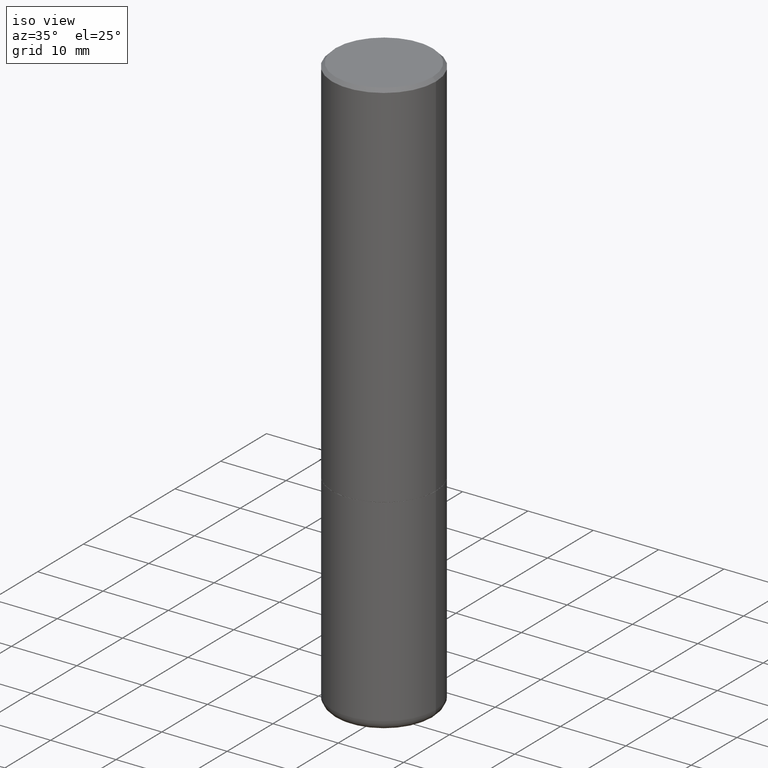
[diagram: clean part render]
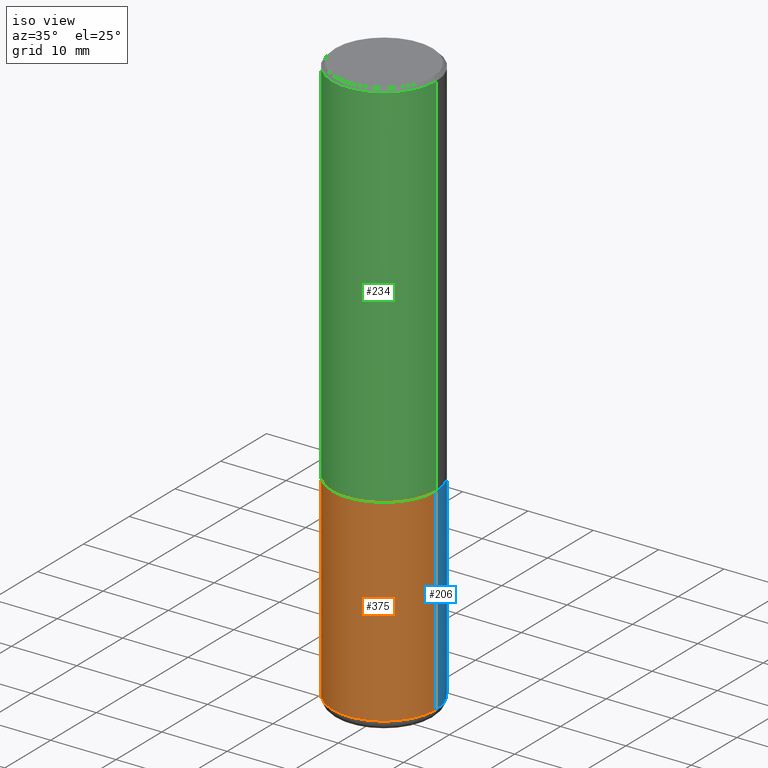
[diagram: same view with three faces highlighted in distinct colors, each labeled with its STEP entity id]
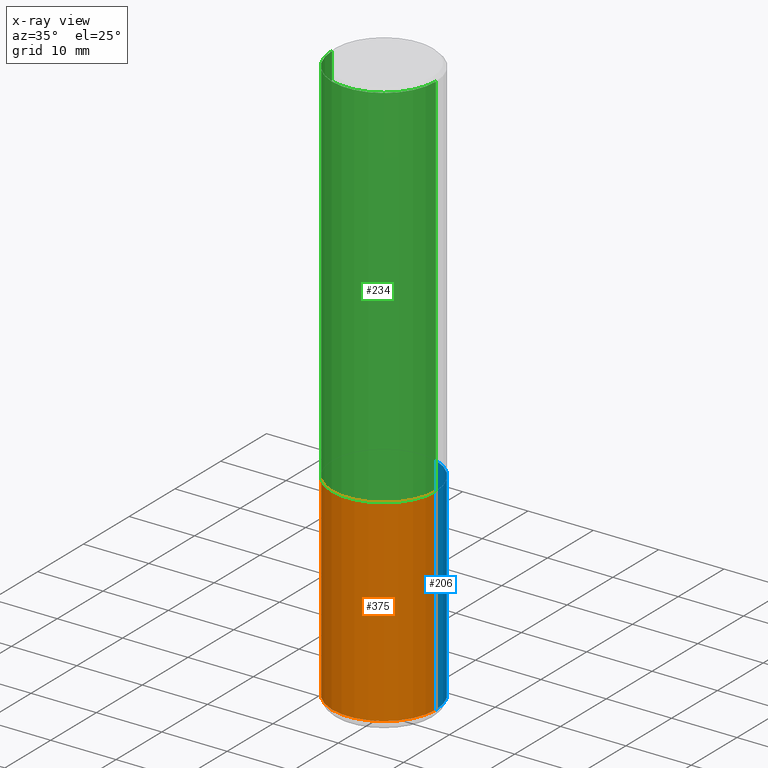
[diagram: x-ray of the same camera — body ghosted, the three highlighted faces saturated]
A machine part, iso view with three faces highlighted in distinct colors.
The next image is the same camera in x-ray (body ghosted, the three faces saturated) — at least one of them is partly hidden behind the body in this view.
Their STEP definitions:

[orange] entity #375 — the highlighted cylindrical surface (partial cylindrical patch) has radius 7.9375 mm, axis along (-0, 0, 1).
#11 = ORIENTED_EDGE ( 'NONE', *, *, #179, .F. ) ;
#16 = AXIS2_PLACEMENT_3D ( 'NONE', #83, #50, #77 ) ;
#20 = VERTEX_POINT ( 'NONE', #154 ) ;
#28 = VERTEX_POINT ( 'NONE', #207 ) ;
#39 = CYLINDRICAL_SURFACE ( 'NONE', #217, 0.3125000000000000000 ) ;
#50 = DIRECTION ( 'NONE',  ( -2.445468806185136597E-29, 3.491481338843145583E-15, 1.000000000000000000 ) ) ;
#59 = EDGE_CURVE ( 'NONE', #28, #326, #73, .T. ) ;
#68 = CIRCLE ( 'NONE', #94, 0.3125000000000000000 ) ;
#70 = DIRECTION ( 'NONE',  ( -2.445468806185136597E-29, 3.491481338843145583E-15, 1.000000000000000000 ) ) ;
#73 = CIRCLE ( 'NONE', #16, 0.3125000000000000000 ) ;
#76 = CARTESIAN_POINT ( 'NONE',  ( 0.3125000000000000000, -1.003800884917403522E-14, -2.249999999999999556 ) ) ;
#77 = DIRECTION ( 'NONE',  ( 1.000000000000000000, -6.982962677686269077E-15, 0.000000000000000000 ) ) ;
#81 = CARTESIAN_POINT ( 'NONE',  ( -0.3125000000000000000, 2.220446049250313081E-15, -1.537167215704658232E-29 ) ) ;
#83 = CARTESIAN_POINT ( 'NONE',  ( 5.502304813916556222E-29, -7.855833012397076871E-15, -2.249999999999999556 ) ) ;
#85 = ORIENTED_EDGE ( 'NONE', *, *, #359, .T. ) ;
#91 = ORIENTED_EDGE ( 'NONE', *, *, #401, .T. ) ;
#94 = AXIS2_PLACEMENT_3D ( 'NONE', #201, #308, #348 ) ;
#101 = ORIENTED_EDGE ( 'NONE', *, *, #59, .F. ) ;
#112 = CARTESIAN_POINT ( 'NONE',  ( 0.3125000000000000000, -2.182175836776958347E-15, 1.523805242436230075E-29 ) ) ;
#114 = VECTOR ( 'NONE', #195, 39.37007874015748143 ) ;
#117 = LINE ( 'NONE', #81, #367 ) ;
#122 = VERTEX_POINT ( 'NONE', #227 ) ;
#154 = CARTESIAN_POINT ( 'NONE',  ( 0.3125000000000000000, -1.419287164239737937E-14, -3.439999999999999947 ) ) ;
#179 = EDGE_CURVE ( 'NONE', #122, #28, #117, .T. ) ;
#195 = DIRECTION ( 'NONE',  ( -2.445468806185136877E-29, 3.491481338843145188E-15, 1.000000000000000000 ) ) ;
#196 = DIRECTION ( 'NONE',  ( 1.000000000000000000, -6.982962677686266711E-15, 4.876176775795936353E-29 ) ) ;
#201 = CARTESIAN_POINT ( 'NONE',  ( 8.412412693276869938E-29, -1.201069580562042103E-14, -3.439999999999999947 ) ) ;
#207 = CARTESIAN_POINT ( 'NONE',  ( -0.3125000000000000000, -7.712818359758435078E-15, -2.249999999999999556 ) ) ;
#217 = AXIS2_PLACEMENT_3D ( 'NONE', #303, #70, #196 ) ;
#218 = DIRECTION ( 'NONE',  ( -2.445468806185136877E-29, 3.491481338843145188E-15, 1.000000000000000000 ) ) ;
#227 = CARTESIAN_POINT ( 'NONE',  ( -0.3125000000000000000, -9.790249756370107944E-15, -3.439999999999999947 ) ) ;
#303 = CARTESIAN_POINT ( 'NONE',  ( 0.000000000000000000, 0.000000000000000000, 0.000000000000000000 ) ) ;
#305 = LINE ( 'NONE', #112, #114 ) ;
#308 = DIRECTION ( 'NONE',  ( -2.445468806185136597E-29, 3.491481338843145583E-15, 1.000000000000000000 ) ) ;
#326 = VERTEX_POINT ( 'NONE', #76 ) ;
#339 = FACE_OUTER_BOUND ( 'NONE', #382, .T. ) ;
#348 = DIRECTION ( 'NONE',  ( 1.000000000000000000, -6.982962677686269077E-15, 0.000000000000000000 ) ) ;
#359 = EDGE_CURVE ( 'NONE', #20, #326, #305, .T. ) ;
#367 = VECTOR ( 'NONE', #218, 39.37007874015748143 ) ;
#375 = ADVANCED_FACE ( 'NONE', ( #339 ), #39, .T. ) ;
#382 = EDGE_LOOP ( 'NONE', ( #11, #91, #85, #101 ) ) ;
#401 = EDGE_CURVE ( 'NONE', #122, #20, #68, .T. ) ;

[blue] entity #206 — the highlighted cylindrical surface (partial cylindrical patch) has radius 7.9375 mm, axis along (-0, 0, 1).
#20 = VERTEX_POINT ( 'NONE', #154 ) ;
#28 = VERTEX_POINT ( 'NONE', #207 ) ;
#29 = DIRECTION ( 'NONE',  ( 1.000000000000000000, -6.982962677686269077E-15, 0.000000000000000000 ) ) ;
#35 = CIRCLE ( 'NONE', #224, 0.3125000000000000000 ) ;
#43 = DIRECTION ( 'NONE',  ( -2.445468806185136597E-29, 3.491481338843145583E-15, 1.000000000000000000 ) ) ;
#76 = CARTESIAN_POINT ( 'NONE',  ( 0.3125000000000000000, -1.003800884917403522E-14, -2.249999999999999556 ) ) ;
#81 = CARTESIAN_POINT ( 'NONE',  ( -0.3125000000000000000, 2.220446049250313081E-15, -1.537167215704658232E-29 ) ) ;
#86 = CARTESIAN_POINT ( 'NONE',  ( 0.000000000000000000, 0.000000000000000000, 0.000000000000000000 ) ) ;
#97 = DIRECTION ( 'NONE',  ( -2.445468806185136597E-29, 3.491481338843145583E-15, 1.000000000000000000 ) ) ;
#111 = ORIENTED_EDGE ( 'NONE', *, *, #359, .F. ) ;
#112 = CARTESIAN_POINT ( 'NONE',  ( 0.3125000000000000000, -2.182175836776958347E-15, 1.523805242436230075E-29 ) ) ;
#114 = VECTOR ( 'NONE', #195, 39.37007874015748143 ) ;
#117 = LINE ( 'NONE', #81, #367 ) ;
#122 = VERTEX_POINT ( 'NONE', #227 ) ;
#124 = ORIENTED_EDGE ( 'NONE', *, *, #179, .T. ) ;
#153 = AXIS2_PLACEMENT_3D ( 'NONE', #235, #43, #307 ) ;
#154 = CARTESIAN_POINT ( 'NONE',  ( 0.3125000000000000000, -1.419287164239737937E-14, -3.439999999999999947 ) ) ;
#179 = EDGE_CURVE ( 'NONE', #122, #28, #117, .T. ) ;
#195 = DIRECTION ( 'NONE',  ( -2.445468806185136877E-29, 3.491481338843145188E-15, 1.000000000000000000 ) ) ;
#206 = ADVANCED_FACE ( 'NONE', ( #251 ), #244, .T. ) ;
#207 = CARTESIAN_POINT ( 'NONE',  ( -0.3125000000000000000, -7.712818359758435078E-15, -2.249999999999999556 ) ) ;
#211 = DIRECTION ( 'NONE',  ( -2.445468806185136597E-29, 3.491481338843145583E-15, 1.000000000000000000 ) ) ;
#215 = EDGE_CURVE ( 'NONE', #326, #28, #35, .T. ) ;
#218 = DIRECTION ( 'NONE',  ( -2.445468806185136877E-29, 3.491481338843145188E-15, 1.000000000000000000 ) ) ;
#224 = AXIS2_PLACEMENT_3D ( 'NONE', #327, #97, #29 ) ;
#227 = CARTESIAN_POINT ( 'NONE',  ( -0.3125000000000000000, -9.790249756370107944E-15, -3.439999999999999947 ) ) ;
#235 = CARTESIAN_POINT ( 'NONE',  ( 8.412412693276869938E-29, -1.201069580562042103E-14, -3.439999999999999947 ) ) ;
#237 = CIRCLE ( 'NONE', #153, 0.3125000000000000000 ) ;
#244 = CYLINDRICAL_SURFACE ( 'NONE', #395, 0.3125000000000000000 ) ;
#251 = FACE_OUTER_BOUND ( 'NONE', #392, .T. ) ;
#305 = LINE ( 'NONE', #112, #114 ) ;
#307 = DIRECTION ( 'NONE',  ( 1.000000000000000000, -6.982962677686269077E-15, 0.000000000000000000 ) ) ;
#324 = DIRECTION ( 'NONE',  ( 1.000000000000000000, -6.982962677686266711E-15, 4.876176775795936353E-29 ) ) ;
#326 = VERTEX_POINT ( 'NONE', #76 ) ;
#327 = CARTESIAN_POINT ( 'NONE',  ( 5.502304813916556222E-29, -7.855833012397076871E-15, -2.249999999999999556 ) ) ;
#351 = ORIENTED_EDGE ( 'NONE', *, *, #215, .F. ) ;
#359 = EDGE_CURVE ( 'NONE', #20, #326, #305, .T. ) ;
#367 = VECTOR ( 'NONE', #218, 39.37007874015748143 ) ;
#388 = ORIENTED_EDGE ( 'NONE', *, *, #397, .T. ) ;
#392 = EDGE_LOOP ( 'NONE', ( #388, #124, #351, #111 ) ) ;
#395 = AXIS2_PLACEMENT_3D ( 'NONE', #86, #211, #324 ) ;
#397 = EDGE_CURVE ( 'NONE', #20, #122, #237, .T. ) ;

[green] entity #234 — the highlighted cylindrical surface (partial cylindrical patch) has radius 7.9375 mm, axis along (-0, 0, 1).
#3 = CARTESIAN_POINT ( 'NONE',  ( 0.000000000000000000, 0.000000000000000000, 0.000000000000000000 ) ) ;
#18 = CARTESIAN_POINT ( 'NONE',  ( 4.890937612370289799E-31, -6.982962677686315028E-17, -0.02000000000000006981 ) ) ;
#32 = CYLINDRICAL_SURFACE ( 'NONE', #191, 0.3125000000000000000 ) ;
#37 = DIRECTION ( 'NONE',  ( 1.000000000000000000, -6.982962677686266711E-15, 0.000000000000000000 ) ) ;
#48 = VECTOR ( 'NONE', #282, 39.37007874015748143 ) ;
#53 = ORIENTED_EDGE ( 'NONE', *, *, #106, .F. ) ;
#56 = CIRCLE ( 'NONE', #264, 0.3124999999999998890 ) ;
#58 = ORIENTED_EDGE ( 'NONE', *, *, #186, .T. ) ;
#62 = CARTESIAN_POINT ( 'NONE',  ( -0.3124999999999998890, 2.112346210000094260E-15, -0.02000000000000006981 ) ) ;
#66 = ORIENTED_EDGE ( 'NONE', *, *, #249, .T. ) ;
#88 = EDGE_LOOP ( 'NONE', ( #53, #66, #58, #293 ) ) ;
#106 = EDGE_CURVE ( 'NONE', #294, #225, #198, .T. ) ;
#107 = FACE_OUTER_BOUND ( 'NONE', #88, .T. ) ;
#142 = CARTESIAN_POINT ( 'NONE',  ( 0.3125000000000002220, -1.003451736783519379E-14, -2.248999999999999666 ) ) ;
#175 = DIRECTION ( 'NONE',  ( -2.445468806185136877E-29, 3.491481338843145188E-15, 1.000000000000000000 ) ) ;
#184 = LINE ( 'NONE', #416, #48 ) ;
#186 = EDGE_CURVE ( 'NONE', #320, #394, #184, .T. ) ;
#191 = AXIS2_PLACEMENT_3D ( 'NONE', #3, #331, #297 ) ;
#198 = LINE ( 'NONE', #343, #362 ) ;
#225 = VERTEX_POINT ( 'NONE', #62 ) ;
#234 = ADVANCED_FACE ( 'NONE', ( #107 ), #32, .T. ) ;
#238 = CARTESIAN_POINT ( 'NONE',  ( -0.3125000000000002220, -1.740639529667230767E-15, -2.248999999999999666 ) ) ;
#249 = EDGE_CURVE ( 'NONE', #294, #320, #379, .T. ) ;
#264 = AXIS2_PLACEMENT_3D ( 'NONE', #18, #346, #378 ) ;
#267 = DIRECTION ( 'NONE',  ( -2.445468806185136597E-29, 3.491481338843145583E-15, 1.000000000000000000 ) ) ;
#271 = CARTESIAN_POINT ( 'NONE',  ( 0.3124999999999998890, -2.213735251080466123E-15, -0.02000000000000006981 ) ) ;
#282 = DIRECTION ( 'NONE',  ( -2.445468806185136877E-29, 3.491481338843145188E-15, 1.000000000000000000 ) ) ;
#283 = AXIS2_PLACEMENT_3D ( 'NONE', #295, #267, #37 ) ;
#293 = ORIENTED_EDGE ( 'NONE', *, *, #338, .F. ) ;
#294 = VERTEX_POINT ( 'NONE', #238 ) ;
#295 = CARTESIAN_POINT ( 'NONE',  ( 5.499859345110371740E-29, -7.852341531058233864E-15, -2.248999999999999666 ) ) ;
#297 = DIRECTION ( 'NONE',  ( 1.000000000000000000, -6.982962677686266711E-15, 4.876176775795936353E-29 ) ) ;
#320 = VERTEX_POINT ( 'NONE', #142 ) ;
#331 = DIRECTION ( 'NONE',  ( -2.445468806185136597E-29, 3.491481338843145583E-15, 1.000000000000000000 ) ) ;
#338 = EDGE_CURVE ( 'NONE', #225, #394, #56, .T. ) ;
#343 = CARTESIAN_POINT ( 'NONE',  ( -0.3125000000000000000, 2.220446049250313081E-15, -1.537167215704658232E-29 ) ) ;
#346 = DIRECTION ( 'NONE',  ( -2.445468806185136597E-29, 3.491481338843145583E-15, 1.000000000000000000 ) ) ;
#362 = VECTOR ( 'NONE', #175, 39.37007874015748143 ) ;
#378 = DIRECTION ( 'NONE',  ( 1.000000000000000000, -6.982962677686266711E-15, 0.000000000000000000 ) ) ;
#379 = CIRCLE ( 'NONE', #283, 0.3125000000000002220 ) ;
#394 = VERTEX_POINT ( 'NONE', #271 ) ;
#416 = CARTESIAN_POINT ( 'NONE',  ( 0.3125000000000000000, -2.182175836776958347E-15, 1.523805242436230075E-29 ) ) ;